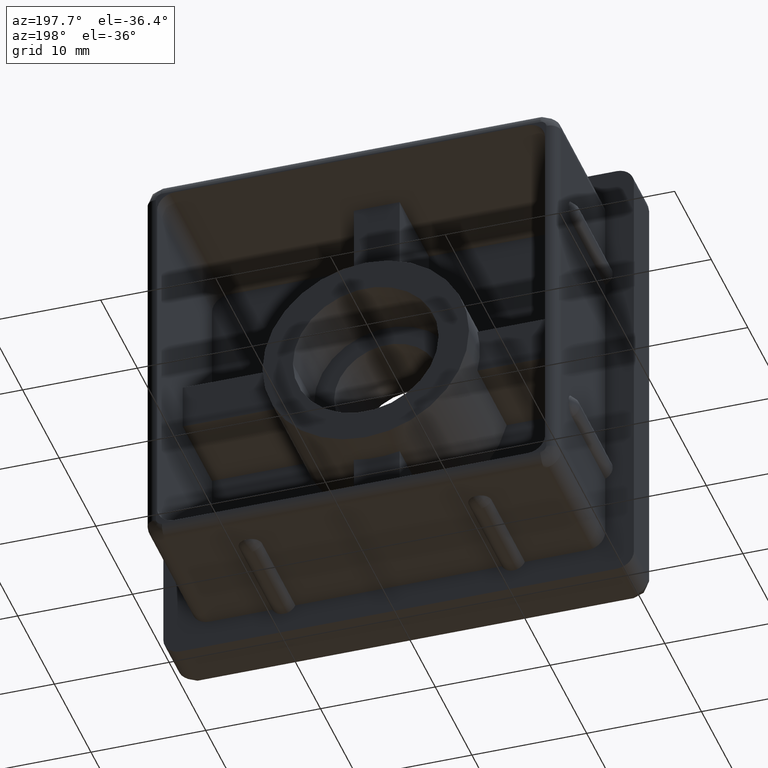
[diagram: clean part render]
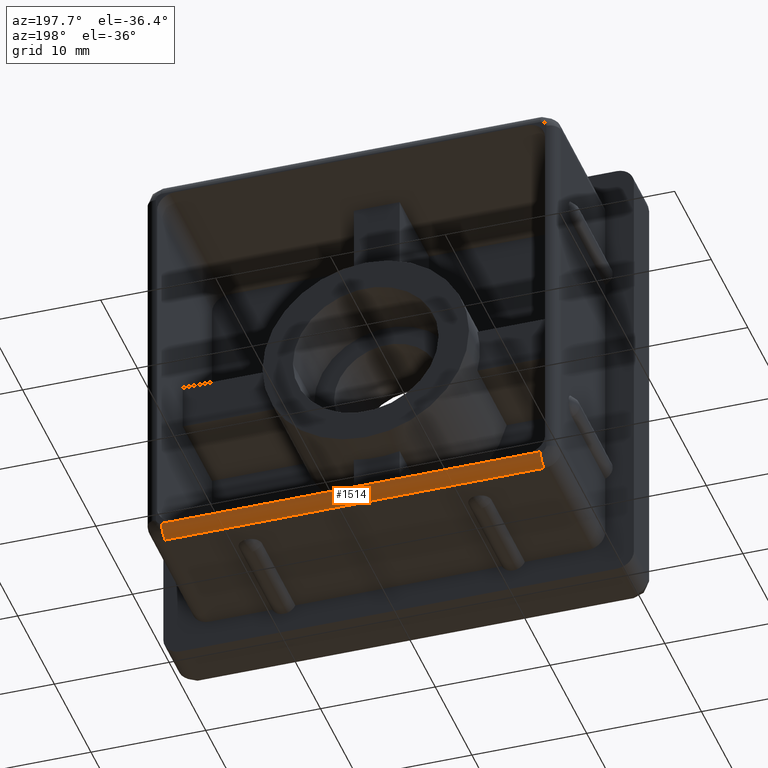
[diagram: same view with one face highlighted and labeled with its STEP entity id]
A machine part, auxiliary view. The second image highlights one B-rep face of the part: STEP entity #1514.
In plain terms, the highlighted cylindrical surface (edge-blend (fillet) strip) has radius 1 mm, axis along (-1, 0, 0).
Its self-contained STEP definition (entity closure, byte-faithful):
#123=CIRCLE('',#1639,1.);
#126=CIRCLE('',#1643,1.);
#158=CYLINDRICAL_SURFACE('',#1642,1.);
#225=FACE_OUTER_BOUND('',#313,.T.);
#313=EDGE_LOOP('',(#1264,#1265,#1266,#1267));
#449=LINE('',#3302,#577);
#450=LINE('',#3303,#578);
#577=VECTOR('',#1981,33.);
#578=VECTOR('',#1982,33.);
#761=VERTEX_POINT('',#3293);
#762=VERTEX_POINT('',#3294);
#763=VERTEX_POINT('',#3299);
#764=VERTEX_POINT('',#3300);
#959=EDGE_CURVE('',#761,#762,#123,.T.);
#962=EDGE_CURVE('',#763,#764,#126,.T.);
#963=EDGE_CURVE('',#764,#762,#449,.T.);
#964=EDGE_CURVE('',#761,#763,#450,.T.);
#1264=ORIENTED_EDGE('',*,*,#962,.T.);
#1265=ORIENTED_EDGE('',*,*,#963,.T.);
#1266=ORIENTED_EDGE('',*,*,#959,.F.);
#1267=ORIENTED_EDGE('',*,*,#964,.T.);
#1514=ADVANCED_FACE('',(#225),#158,.T.);
#1639=AXIS2_PLACEMENT_3D('',#3295,#1971,#1972);
#1642=AXIS2_PLACEMENT_3D('',#3298,#1977,#1978);
#1643=AXIS2_PLACEMENT_3D('',#3301,#1979,#1980);
#1971=DIRECTION('center_axis',(-1.,0.,0.));
#1972=DIRECTION('ref_axis',(0.,1.,0.));
#1977=DIRECTION('center_axis',(-1.,0.,0.));
#1978=DIRECTION('ref_axis',(0.,0.707106781186548,-0.707106781186548));
#1979=DIRECTION('center_axis',(-1.,0.,0.));
#1980=DIRECTION('ref_axis',(0.,1.,0.));
#1981=DIRECTION('',(-1.,0.,0.));
#1982=DIRECTION('',(1.,0.,0.));
#3293=CARTESIAN_POINT('',(-16.5,13.,-17.));
#3294=CARTESIAN_POINT('',(-16.5,12.,-18.));
#3295=CARTESIAN_POINT('Origin',(-16.5,12.,-17.));
#3298=CARTESIAN_POINT('Origin',(9.,12.,-17.));
#3299=CARTESIAN_POINT('',(16.5,13.,-17.));
#3300=CARTESIAN_POINT('',(16.5,12.,-18.));
#3301=CARTESIAN_POINT('Origin',(16.5,12.,-17.));
#3302=CARTESIAN_POINT('',(9.,12.,-18.));
#3303=CARTESIAN_POINT('',(9.,13.,-17.));